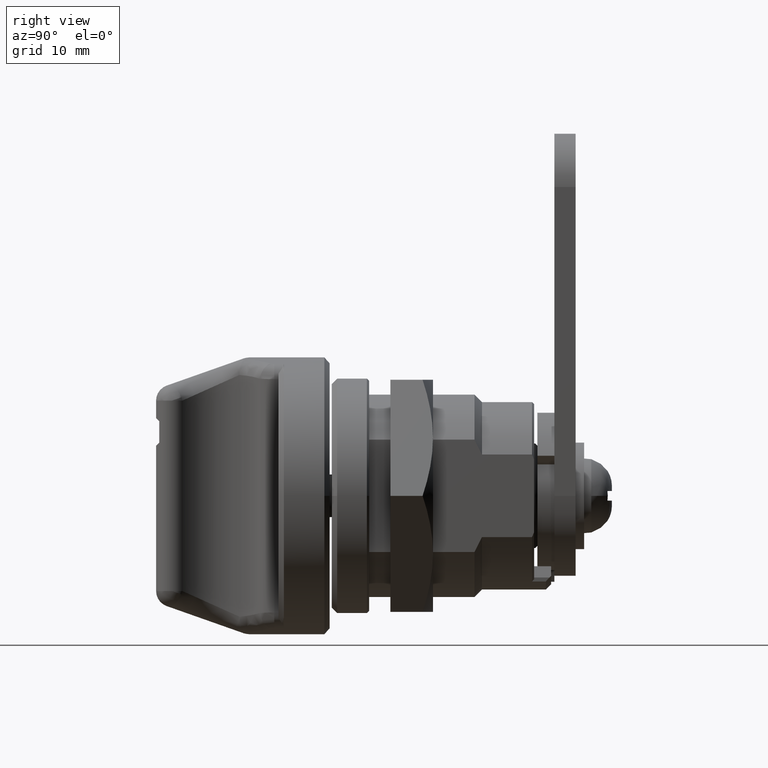
[diagram: clean part render]
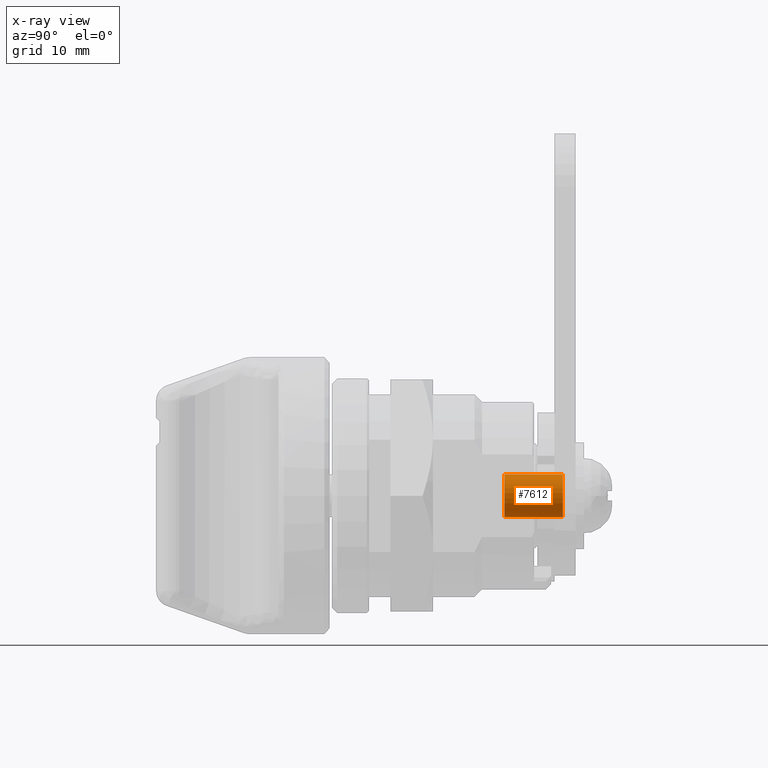
[diagram: x-ray — body ghosted, one internal face saturated and labeled with its STEP entity id]
A machine part, right view, then the same camera in x-ray: the body is ghosted and one INTERNAL B-rep face — a face not visible from any outside direction — is saturated and labeled: STEP entity #7612.
In plain terms, the highlighted cylindrical surface (edge-blend (fillet) strip) has radius 2 mm, axis along (0, 1, 0).
Its self-contained STEP definition (entity closure, byte-faithful):
#273 = CARTESIAN_POINT ( 'NONE',  ( -2.000000000005303300, -3.061616997874330700E-016, -10.09999999940530400 ) ) ;
#426 = DIRECTION ( 'NONE',  ( 0.0000000000000000000, -0.0000000000000000000, 1.000000000000000000 ) ) ;
#600 = CIRCLE ( 'NONE', #2562, 2.000000000000000000 ) ;
#655 = AXIS2_PLACEMENT_3D ( 'NONE', #4599, #10571, #5466 ) ;
#698 = VERTEX_POINT ( 'NONE', #273 ) ;
#1053 = ORIENTED_EDGE ( 'NONE', *, *, #10158, .T. ) ;
#1614 = CIRCLE ( 'NONE', #655, 2.000000000000000000 ) ;
#2562 = AXIS2_PLACEMENT_3D ( 'NONE', #5517, #426, #6369 ) ;
#2619 = CARTESIAN_POINT ( 'NONE',  ( 2.000000000000000000, 0.0000000000000000000, -4.599999999999999600 ) ) ;
#2734 = EDGE_CURVE ( 'NONE', #698, #6756, #5926, .T. ) ;
#2751 = CARTESIAN_POINT ( 'NONE',  ( 2.000000000000000000, 0.0000000000000000000, -7.350000143050000800 ) ) ;
#2789 = LINE ( 'NONE', #2751, #7055 ) ;
#2891 = CARTESIAN_POINT ( 'NONE',  ( 0.0000000000000000000, 0.0000000000000000000, -7.350000143050000800 ) ) ;
#2929 = AXIS2_PLACEMENT_3D ( 'NONE', #2891, #5419, #8895 ) ;
#3414 = VECTOR ( 'NONE', #8655, 1000.000000000000000 ) ;
#3492 = EDGE_CURVE ( 'NONE', #10999, #7100, #2789, .T. ) ;
#3535 = DIRECTION ( 'NONE',  ( 0.0000000000000000000, -0.0000000000000000000, 1.000000000000000000 ) ) ;
#4599 = CARTESIAN_POINT ( 'NONE',  ( 0.0000000000000000000, 0.0000000000000000000, -4.599999999999999600 ) ) ;
#4689 = CARTESIAN_POINT ( 'NONE',  ( -2.000000000000000000, 2.449293598294706400E-016, -4.599999999999999600 ) ) ;
#5419 = DIRECTION ( 'NONE',  ( 0.0000000000000000000, -0.0000000000000000000, 1.000000000000000000 ) ) ;
#5466 = DIRECTION ( 'NONE',  ( 1.000000000000000000, 0.0000000000000000000, 0.0000000000000000000 ) ) ;
#5517 = CARTESIAN_POINT ( 'NONE',  ( 0.0000000000000000000, 0.0000000000000000000, -10.09999999940000000 ) ) ;
#5535 = ORIENTED_EDGE ( 'NONE', *, *, #3492, .T. ) ;
#5720 = EDGE_CURVE ( 'NONE', #7100, #6756, #1614, .T. ) ;
#5926 = LINE ( 'NONE', #9515, #3414 ) ;
#6369 = DIRECTION ( 'NONE',  ( 1.000000000000000000, 0.0000000000000000000, 0.0000000000000000000 ) ) ;
#6488 = CARTESIAN_POINT ( 'NONE',  ( 2.000000000003535000, 3.673940397440933300E-016, -10.09999999940442300 ) ) ;
#6756 = VERTEX_POINT ( 'NONE', #4689 ) ;
#7055 = VECTOR ( 'NONE', #3535, 1000.000000000000000 ) ;
#7100 = VERTEX_POINT ( 'NONE', #2619 ) ;
#7103 = ORIENTED_EDGE ( 'NONE', *, *, #2734, .F. ) ;
#7529 = ORIENTED_EDGE ( 'NONE', *, *, #5720, .T. ) ;
#7612 = ADVANCED_FACE ( 'NONE', ( #8386 ), #9591, .T. ) ;
#8386 = FACE_OUTER_BOUND ( 'NONE', #9393, .T. ) ;
#8655 = DIRECTION ( 'NONE',  ( 0.0000000000000000000, -0.0000000000000000000, 1.000000000000000000 ) ) ;
#8895 = DIRECTION ( 'NONE',  ( 1.000000000000000000, 0.0000000000000000000, 0.0000000000000000000 ) ) ;
#9393 = EDGE_LOOP ( 'NONE', ( #7103, #1053, #5535, #7529 ) ) ;
#9515 = CARTESIAN_POINT ( 'NONE',  ( -2.000000000000000000, 2.449293598294706400E-016, -7.350000143050000800 ) ) ;
#9591 = CYLINDRICAL_SURFACE ( 'NONE', #2929, 2.000000000000000000 ) ;
#10158 = EDGE_CURVE ( 'NONE', #698, #10999, #600, .T. ) ;
#10571 = DIRECTION ( 'NONE',  ( -0.0000000000000000000, 0.0000000000000000000, -1.000000000000000000 ) ) ;
#10999 = VERTEX_POINT ( 'NONE', #6488 ) ;